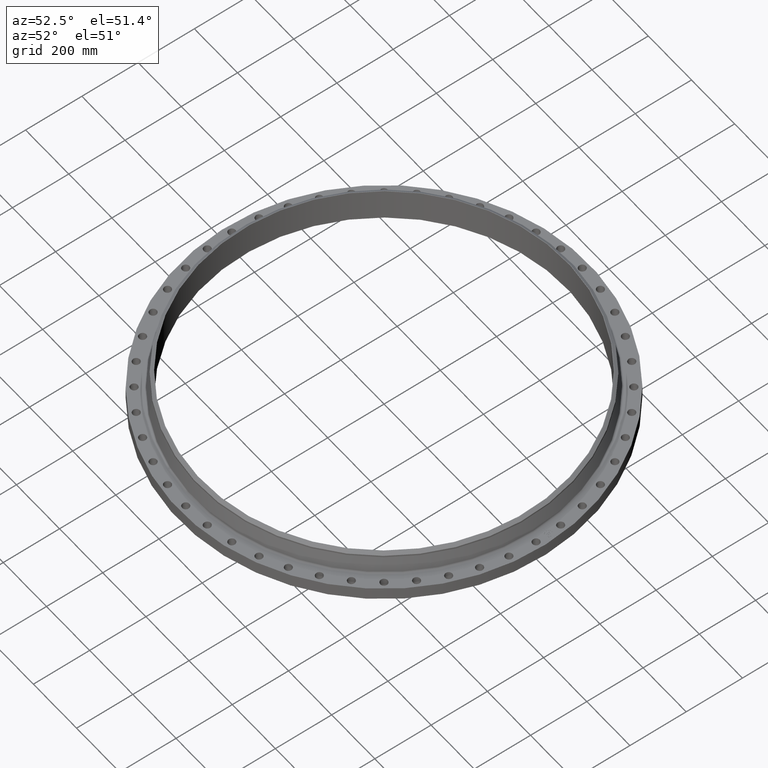
[diagram: clean part render]
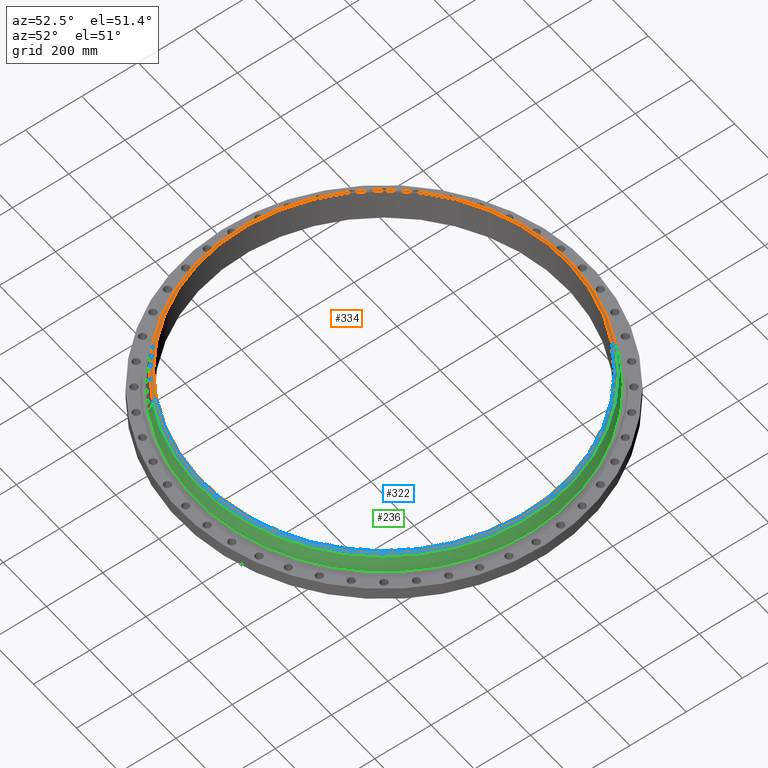
[diagram: same view with three faces highlighted in distinct colors, each labeled with its STEP entity id]
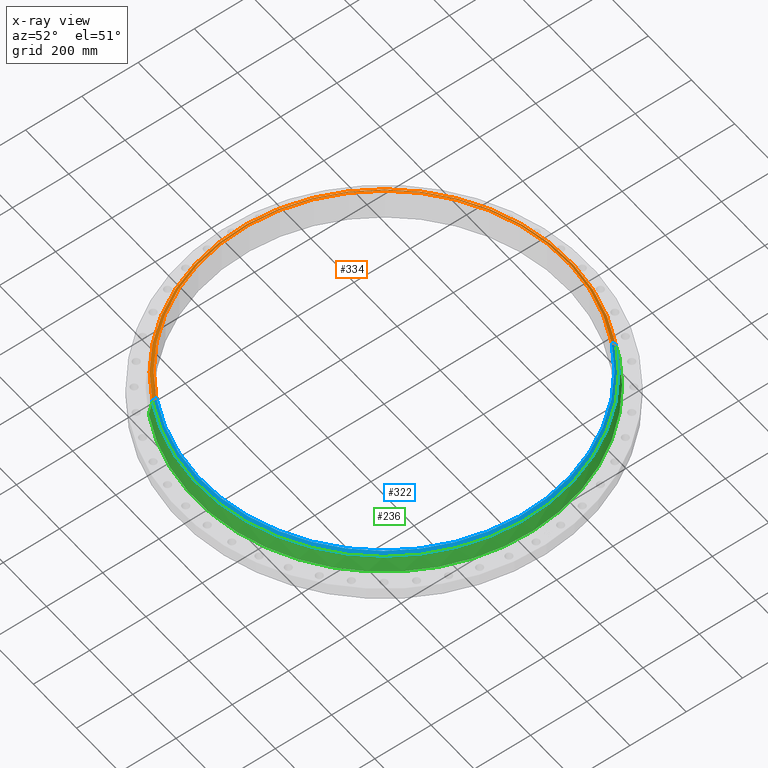
[diagram: x-ray of the same camera — body ghosted, the three highlighted faces saturated]
A machine part, auxiliary view with three faces highlighted in distinct colors.
The next image is the same camera in x-ray (body ghosted, the three faces saturated) — at least one of them is partly hidden behind the body in this view.
Their STEP definitions:

[orange] entity #334 — the highlighted conical surface has half-angle 52.5 deg.
#282=AXIS2_PLACEMENT_3D('Circle Axis2P3D',#280,#281,$) ;
#295=AXIS2_PLACEMENT_3D('Cone Axis2P3D',#292,#293,#294) ;
#325=AXIS2_PLACEMENT_3D('Circle Axis2P3D',#323,#324,$) ;
#258=CARTESIAN_POINT('Vertex',(-12.4794467699,-22.8434740861,4.35429444278)) ;
#265=CARTESIAN_POINT('Vertex',(12.4794467699,22.8434740861,4.35429444278)) ;
#280=CARTESIAN_POINT('Axis2P3D Location',(0.,0.,4.35429444278)) ;
#292=CARTESIAN_POINT('Axis2P3D Location',(0.,0.,4.69000000002)) ;
#297=CARTESIAN_POINT('Line Origine',(12.3745724333,22.6515029007,4.5221472214)) ;
#301=CARTESIAN_POINT('Vertex',(12.2696980968,22.4595317153,4.69000000002)) ;
#308=CARTESIAN_POINT('Vertex',(-12.2696980968,-22.4595317153,4.69000000002)) ;
#311=CARTESIAN_POINT('Line Origine',(-12.3745724333,-22.6515029007,4.5221472214)) ;
#323=CARTESIAN_POINT('Axis2P3D Location',(0.,0.,4.69000000002)) ;
#281=DIRECTION('Axis2P3D Direction',(0.,0.,-0.0393700787402)) ;
#293=DIRECTION('Axis2P3D Direction',(-0.,-0.,-0.0393700787402)) ;
#294=DIRECTION('Axis2P3D XDirection',(-0.0188750212049,-0.0345504945626,0.)) ;
#298=DIRECTION('Vector Direction',(0.014974561121,0.02741075027,-0.023966985394)) ;
#312=DIRECTION('Vector Direction',(-0.014974561121,-0.02741075027,-0.023966985394)) ;
#324=DIRECTION('Axis2P3D Direction',(0.,-0.,-0.0393700787402)) ;
#299=VECTOR('Line Direction',#298,0.0393700787402) ;
#313=VECTOR('Line Direction',#312,0.0393700787402) ;
#329=ORIENTED_EDGE('',*,*,#315,.F.) ;
#330=ORIENTED_EDGE('',*,*,#327,.T.) ;
#331=ORIENTED_EDGE('',*,*,#303,.T.) ;
#332=ORIENTED_EDGE('',*,*,#284,.F.) ;
#334=ADVANCED_FACE('PartBody',(#333),#296,.T.) ;
#283=CIRCLE('generated circle',#282,26.0300000001) ;
#326=CIRCLE('generated circle',#325,25.5925000001) ;
#296=CONICAL_SURFACE('Cone',#295,25.5925000001,0.916297857297) ;
#284=EDGE_CURVE('',#259,#266,#283,.T.) ;
#303=EDGE_CURVE('',#302,#266,#300,.T.) ;
#315=EDGE_CURVE('',#309,#259,#314,.T.) ;
#327=EDGE_CURVE('',#309,#302,#326,.T.) ;
#328=EDGE_LOOP('',(#329,#330,#331,#332)) ;
#333=FACE_OUTER_BOUND('',#328,.T.) ;
#300=LINE('Line',#297,#299) ;
#314=LINE('Line',#311,#313) ;
#259=VERTEX_POINT('',#258) ;
#266=VERTEX_POINT('',#265) ;
#302=VERTEX_POINT('',#301) ;
#309=VERTEX_POINT('',#308) ;

[blue] entity #322 — the highlighted conical surface has half-angle 52.5 deg.
#270=AXIS2_PLACEMENT_3D('Circle Axis2P3D',#268,#269,$) ;
#295=AXIS2_PLACEMENT_3D('Cone Axis2P3D',#292,#293,#294) ;
#306=AXIS2_PLACEMENT_3D('Circle Axis2P3D',#304,#305,$) ;
#258=CARTESIAN_POINT('Vertex',(-12.4794467699,-22.8434740861,4.35429444278)) ;
#265=CARTESIAN_POINT('Vertex',(12.4794467699,22.8434740861,4.35429444278)) ;
#268=CARTESIAN_POINT('Axis2P3D Location',(0.,0.,4.35429444278)) ;
#292=CARTESIAN_POINT('Axis2P3D Location',(0.,0.,4.69000000002)) ;
#297=CARTESIAN_POINT('Line Origine',(12.3745724333,22.6515029007,4.5221472214)) ;
#301=CARTESIAN_POINT('Vertex',(12.2696980968,22.4595317153,4.69000000002)) ;
#304=CARTESIAN_POINT('Axis2P3D Location',(0.,0.,4.69000000002)) ;
#308=CARTESIAN_POINT('Vertex',(-12.2696980968,-22.4595317153,4.69000000002)) ;
#311=CARTESIAN_POINT('Line Origine',(-12.3745724333,-22.6515029007,4.5221472214)) ;
#269=DIRECTION('Axis2P3D Direction',(0.,0.,-0.0393700787402)) ;
#293=DIRECTION('Axis2P3D Direction',(-0.,-0.,-0.0393700787402)) ;
#294=DIRECTION('Axis2P3D XDirection',(-0.0188750212049,-0.0345504945626,0.)) ;
#298=DIRECTION('Vector Direction',(0.014974561121,0.02741075027,-0.023966985394)) ;
#305=DIRECTION('Axis2P3D Direction',(0.,-0.,-0.0393700787402)) ;
#312=DIRECTION('Vector Direction',(-0.014974561121,-0.02741075027,-0.023966985394)) ;
#299=VECTOR('Line Direction',#298,0.0393700787402) ;
#313=VECTOR('Line Direction',#312,0.0393700787402) ;
#317=ORIENTED_EDGE('',*,*,#303,.F.) ;
#318=ORIENTED_EDGE('',*,*,#310,.T.) ;
#319=ORIENTED_EDGE('',*,*,#315,.T.) ;
#320=ORIENTED_EDGE('',*,*,#272,.F.) ;
#322=ADVANCED_FACE('PartBody',(#321),#296,.T.) ;
#271=CIRCLE('generated circle',#270,26.0300000001) ;
#307=CIRCLE('generated circle',#306,25.5925000001) ;
#296=CONICAL_SURFACE('Cone',#295,25.5925000001,0.916297857297) ;
#272=EDGE_CURVE('',#266,#259,#271,.T.) ;
#303=EDGE_CURVE('',#302,#266,#300,.T.) ;
#310=EDGE_CURVE('',#302,#309,#307,.T.) ;
#315=EDGE_CURVE('',#309,#259,#314,.T.) ;
#316=EDGE_LOOP('',(#317,#318,#319,#320)) ;
#321=FACE_OUTER_BOUND('',#316,.T.) ;
#300=LINE('Line',#297,#299) ;
#314=LINE('Line',#311,#313) ;
#259=VERTEX_POINT('',#258) ;
#266=VERTEX_POINT('',#265) ;
#302=VERTEX_POINT('',#301) ;
#309=VERTEX_POINT('',#308) ;

[green] entity #236 — the highlighted conical surface has half-angle 10.839 deg.
#172=AXIS2_PLACEMENT_3D('Circle Axis2P3D',#170,#171,$) ;
#209=AXIS2_PLACEMENT_3D('Cone Axis2P3D',#206,#207,#208) ;
#220=AXIS2_PLACEMENT_3D('Circle Axis2P3D',#218,#219,$) ;
#167=CARTESIAN_POINT('Vertex',(12.671761138,23.1955031757,2.02298777803)) ;
#170=CARTESIAN_POINT('Axis2P3D Location',(0.,0.,2.02298777803)) ;
#174=CARTESIAN_POINT('Vertex',(-12.671761138,-23.1955031757,2.02298777803)) ;
#206=CARTESIAN_POINT('Axis2P3D Location',(0.,0.,4.11807397034)) ;
#211=CARTESIAN_POINT('Line Origine',(12.575603954,23.0194886309,3.07053087418)) ;
#215=CARTESIAN_POINT('Vertex',(12.4794467699,22.8434740861,4.11807397034)) ;
#218=CARTESIAN_POINT('Axis2P3D Location',(0.,0.,4.11807397034)) ;
#222=CARTESIAN_POINT('Vertex',(-12.4794467699,-22.8434740861,4.11807397034)) ;
#225=CARTESIAN_POINT('Line Origine',(-12.575603954,-23.0194886309,3.07053087418)) ;
#171=DIRECTION('Axis2P3D Direction',(0.,0.,-0.0393700787402)) ;
#207=DIRECTION('Axis2P3D Direction',(0.,0.,-0.0393700787402)) ;
#208=DIRECTION('Axis2P3D XDirection',(-0.0188750212049,-0.0345504945626,0.)) ;
#212=DIRECTION('Vector Direction',(0.00354942674673,0.00649718207901,-0.0386677035109)) ;
#219=DIRECTION('Axis2P3D Direction',(0.,0.,-0.0393700787402)) ;
#226=DIRECTION('Vector Direction',(-0.00354942674673,-0.00649718207901,-0.0386677035109)) ;
#213=VECTOR('Line Direction',#212,0.0393700787402) ;
#227=VECTOR('Line Direction',#226,0.0393700787402) ;
#231=ORIENTED_EDGE('',*,*,#176,.F.) ;
#232=ORIENTED_EDGE('',*,*,#217,.T.) ;
#233=ORIENTED_EDGE('',*,*,#224,.T.) ;
#234=ORIENTED_EDGE('',*,*,#229,.F.) ;
#236=ADVANCED_FACE('PartBody',(#235),#210,.T.) ;
#173=CIRCLE('generated circle',#172,26.4311350099) ;
#221=CIRCLE('generated circle',#220,26.0300000001) ;
#210=CONICAL_SURFACE('Cone',#209,26.0300000001,0.189175214425) ;
#176=EDGE_CURVE('',#168,#175,#173,.T.) ;
#217=EDGE_CURVE('',#168,#216,#214,.F.) ;
#224=EDGE_CURVE('',#216,#223,#221,.T.) ;
#229=EDGE_CURVE('',#175,#223,#228,.F.) ;
#230=EDGE_LOOP('',(#231,#232,#233,#234)) ;
#235=FACE_OUTER_BOUND('',#230,.T.) ;
#214=LINE('Line',#211,#213) ;
#228=LINE('Line',#225,#227) ;
#168=VERTEX_POINT('',#167) ;
#175=VERTEX_POINT('',#174) ;
#216=VERTEX_POINT('',#215) ;
#223=VERTEX_POINT('',#222) ;